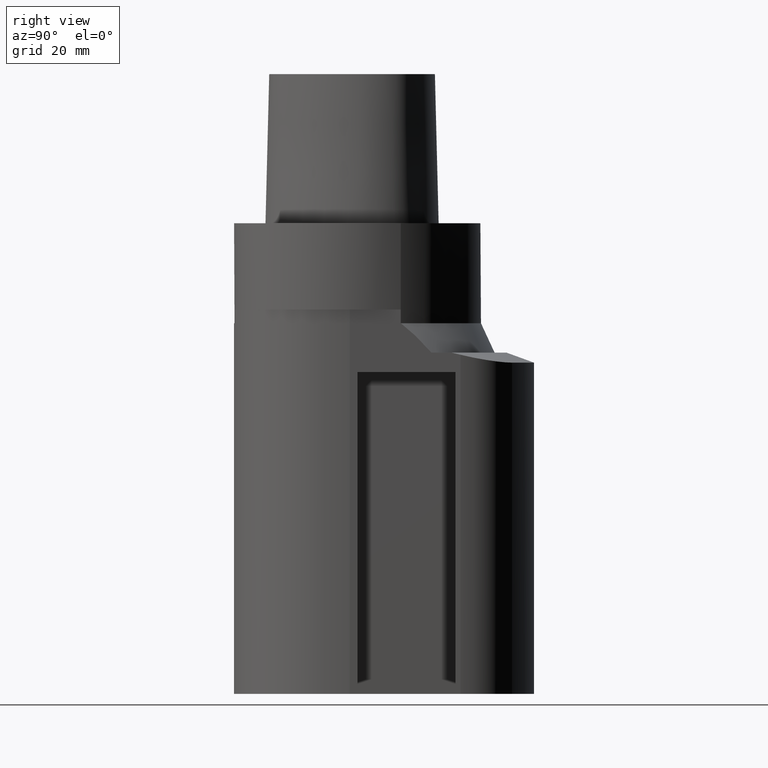
[diagram: clean part render]
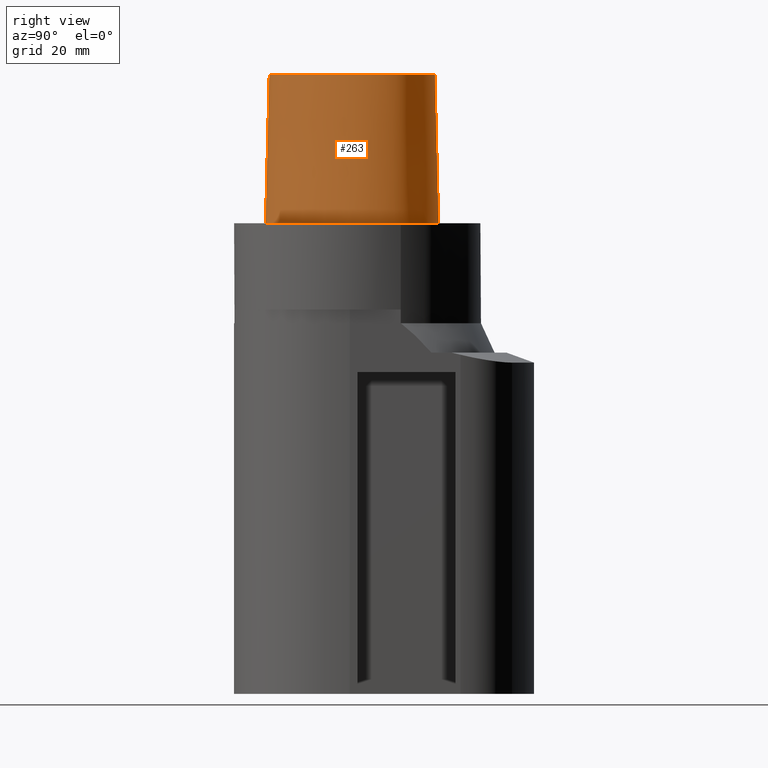
[diagram: same view with one face highlighted and labeled with its STEP entity id]
A machine part, right view. The second image highlights one B-rep face of the part: STEP entity #263.
In plain terms, the highlighted face is a freeform B-spline surface patch.
Its self-contained STEP definition (entity closure, byte-faithful):
#124=EDGE_CURVE('240[2]',#344,#320,#345,.T.);
#163=EDGE_CURVE('240[2]',#375,#374,#406,.T.);
#187=EDGE_CURVE('240[2]',#374,#320,#442,.T.);
#230=EDGE_CURVE('240[2]',#375,#344,#495,.T.);
#263=ADVANCED_FACE('240[2]',(#534),#535,.T.);
#320=VERTEX_POINT('',#588);
#344=VERTEX_POINT('',#620);
#345=B_SPLINE_CURVE_WITH_KNOTS('',3,(#621,#622,#623,#624,#625,#626,#627,#628,#629,#630,#631,#632,#633,#634,#635,#636,#637,#638,#639,#640,#641,#642,#643,#644,#645,#646,#647,#648,#649,#650,#651,#652),.UNSPECIFIED.,.F.,.F.,(4,2,2,2,2,2,2,2,2,2,2,2,2,2,2,4),(6.6151339308743,6.90353802293409,7.19194211499389,7.48034620705369,7.76875029911348,8.3273781966476,8.88600609418171,10.0632582234986,10.5220146921826,10.9807711608666,11.2101493952086,11.4395276295506,11.8982840982346,12.4281394376607,12.8292036497046,13.2302678617486),.UNSPECIFIED.);
#374=VERTEX_POINT('',#703);
#375=VERTEX_POINT('',#704);
#406=B_SPLINE_CURVE_WITH_KNOTS('',3,(#785,#786,#787,#788,#789,#790,#791,#792,#793,#794,#795,#796,#797,#798,#799,#800),.UNSPECIFIED.,.F.,.F.,(4,1,1,1,1,1,1,1,1,1,1,1,1,4),(6.61513393087503,6.99917207152274,7.48193246986995,7.96289324787093,8.45540287038584,9.10291653679981,9.67129810936083,10.1618749681153,10.6358867802489,11.1080734988593,11.6043706019633,12.09451993853,12.6985979284494,13.2302678617486),.UNSPECIFIED.);
#442=LINE('',#859,#860);
#495=LINE('',#972,#973);
#534=FACE_OUTER_BOUND('',#1116,.T.);
#535=B_SPLINE_SURFACE_WITH_KNOTS('',3,3,((#1117,#1118,#1119,#1120),(#1121,#1122,#1123,#1124),(#1125,#1126,#1127,#1128),(#1129,#1130,#1131,#1132),(#1133,#1134,#1135,#1136),(#1137,#1138,#1139,#1140),(#1141,#1142,#1143,#1144),(#1145,#1146,#1147,#1148),(#1149,#1150,#1151,#1152),(#1153,#1154,#1155,#1156),(#1157,#1158,#1159,#1160),(#1161,#1162,#1163,#1164),(#1165,#1166,#1167,#1168),(#1169,#1170,#1171,#1172),(#1173,#1174,#1175,#1176),(#1177,#1178,#1179,#1180),(#1181,#1182,#1183,#1184)),.UNSPECIFIED.,.F.,.F.,.F.,(4,1,1,1,1,1,1,1,1,1,1,1,1,1,4),(4,4),(-13.2302678617486,-12.816821991069,-12.4033761203893,-11.9899302497097,-11.57648437903,-11.1630385083504,-10.9563155730106,-10.7495926376707,-10.3361467669911,-9.92270089631145,-9.09580915495216,-8.26891741359287,-7.44202567223358,-7.02857980155394,-6.6151339308743),(-3.8,0.0),.UNSPECIFIED.);
#588=CARTESIAN_POINT('',(0.044682985379347,20.6765087343109,0.0));
#620=CARTESIAN_POINT('',(0.04359356758149,-23.4691235068931,0.0));
#621=CARTESIAN_POINT('',(0.04359356758149,-23.4691235068931,0.0));
#622=CARTESIAN_POINT('',(1.1004598519742,-23.4637201011149,7.105427E-015));
#623=CARTESIAN_POINT('',(2.14400887535539,-23.2973076591387,0.0));
#624=CARTESIAN_POINT('',(4.1424681795584,-22.7592077909815,0.0));
#625=CARTESIAN_POINT('',(5.09815205870591,-22.390397570418,-7.105427E-015));
#626=CARTESIAN_POINT('',(6.9351099930747,-21.5078613163183,-7.105427E-015));
#627=CARTESIAN_POINT('',(7.80351845767777,-20.9996631554928,-7.105427E-015));
#628=CARTESIAN_POINT('',(9.46943987011575,-19.8886274331692,-7.105427E-015));
#629=CARTESIAN_POINT('',(10.2666299015956,-19.2853057570752,-7.105427E-015));
#630=CARTESIAN_POINT('',(12.5026318141948,-17.3963733278614,2.131628E-014));
#631=CARTESIAN_POINT('',(13.8422909676271,-16.0046937991299,0.0));
#632=CARTESIAN_POINT('',(16.2509822407142,-13.0101546997628,1.421085E-014));
#633=CARTESIAN_POINT('',(17.3206577927156,-11.4078127381174,-7.105427E-015));
#634=CARTESIAN_POINT('',(20.1948648257688,-6.17855164445771,-7.105427E-015));
#635=CARTESIAN_POINT('',(21.5264998810762,-2.27044916431131,-7.105427E-015));
#636=CARTESIAN_POINT('',(22.1083077940609,3.36511341978747,-7.105427E-015));
#637=CARTESIAN_POINT('',(22.1437891560423,4.95691742010578,-7.105427E-015));
#638=CARTESIAN_POINT('',(21.7438554055,8.21486313336421,-7.105427E-015));
#639=CARTESIAN_POINT('',(21.2813238062713,9.87761881981491,0.0));
#640=CARTESIAN_POINT('',(20.1794569882097,12.0317423962685,0.0));
#641=CARTESIAN_POINT('',(19.7024138468366,12.7593191234763,-7.105427E-015));
#642=CARTESIAN_POINT('',(18.6262164065722,14.0443851003557,-7.105427E-015));
#643=CARTESIAN_POINT('',(18.0388107856225,14.6116679410871,0.0));
#644=CARTESIAN_POINT('',(16.1284788612342,16.197117807416,7.105427E-015));
#645=CARTESIAN_POINT('',(14.7618818860482,17.03003182658,0.0));
#646=CARTESIAN_POINT('',(11.6856166176821,18.5458506425855,0.0));
#647=CARTESIAN_POINT('',(9.96274972961394,19.1800623227596,0.0));
#648=CARTESIAN_POINT('',(6.84723700488339,20.0025241142556,0.0));
#649=CARTESIAN_POINT('',(5.4719505740624,20.2496312304465,0.0));
#650=CARTESIAN_POINT('',(2.7387517037224,20.5467807312008,0.0));
#651=CARTESIAN_POINT('',(1.38248716057628,20.6117898211938,0.0));
#652=CARTESIAN_POINT('',(0.044682985379347,20.6765087343109,0.0));
#703=CARTESIAN_POINT('',(-0.001218547003662,19.7276821925089,38.0));
#704=CARTESIAN_POINT('',(0.038736923393866,-22.5191997536361,38.0));
#785=CARTESIAN_POINT('',(0.038736923394311,-22.519199753636,38.0));
#786=CARTESIAN_POINT('',(1.31742058183662,-22.512662269405,38.0));
#787=CARTESIAN_POINT('',(4.2093773447498,-21.9116226439989,38.0));
#788=CARTESIAN_POINT('',(8.20895504542113,-19.7798683845067,38.0));
#789=CARTESIAN_POINT('',(11.9784633234593,-16.681663904162,38.0));
#790=CARTESIAN_POINT('',(15.5308821579362,-12.5807487594113,38.0));
#791=CARTESIAN_POINT('',(18.4566248438667,-7.64932246015528,38.0));
#792=CARTESIAN_POINT('',(20.4036090752029,-2.27012499825289,38.0));
#793=CARTESIAN_POINT('',(21.2357187429189,2.79891401173156,38.0));
#794=CARTESIAN_POINT('',(21.0811206267748,7.62543090736657,38.0));
#795=CARTESIAN_POINT('',(19.3383577336563,12.2772250726194,38.0));
#796=CARTESIAN_POINT('',(15.5796322014404,15.5799672120682,38.0));
#797=CARTESIAN_POINT('',(10.8392956074438,17.9834601687347,38.0));
#798=CARTESIAN_POINT('',(5.56068045850571,19.4586143858472,38.0));
#799=CARTESIAN_POINT('',(1.77223893711014,19.6418877095654,38.0));
#800=CARTESIAN_POINT('',(-0.001218367817519,19.7276822012873,38.0));
#859=CARTESIAN_POINT('',(-0.001218547003662,19.7276821925089,38.0));
#860=VECTOR('',#1371,38.0118715503078);
#972=CARTESIAN_POINT('',(0.038736923393866,-22.5191997536361,38.0));
#973=VECTOR('',#1449,38.0118715498723);
#1116=EDGE_LOOP('',(#1487,#1488,#1489,#1490));
#1117=CARTESIAN_POINT('',(-0.001218367817519,19.7276822012873,38.0));
#1118=CARTESIAN_POINT('',(0.014082083248157,20.0439577123075,25.3333333333066));
#1119=CARTESIAN_POINT('',(0.029382534313671,20.3602332232908,12.6666666666934));
#1120=CARTESIAN_POINT('',(0.044682985379347,20.6765087343109,0.0));
#1121=CARTESIAN_POINT('',(1.37788651195108,19.6609652834875,38.0));
#1122=CARTESIAN_POINT('',(1.3931885827258,19.9772407169847,25.3333333333066));
#1123=CARTESIAN_POINT('',(1.40849065356095,20.2935162254648,12.6666666666934));
#1124=CARTESIAN_POINT('',(1.42379272427753,20.6097915814392,0.0));
#1125=CARTESIAN_POINT('',(4.135446440878,19.5347778787784,38.0));
#1126=CARTESIAN_POINT('',(4.16466278851883,19.8511031866125,25.3333333333066));
#1127=CARTESIAN_POINT('',(4.1938791526746,20.1674284644204,12.6666666666934));
#1128=CARTESIAN_POINT('',(4.2230955003445,20.4837538303966,0.0));
#1129=CARTESIAN_POINT('',(8.213607363795,18.7706026638736,38.0));
#1130=CARTESIAN_POINT('',(8.29980745008421,19.0767495109635,25.3333333333066));
#1131=CARTESIAN_POINT('',(8.38600751285747,19.3828964329996,12.6666666666934));
#1132=CARTESIAN_POINT('',(8.47220762821777,19.6890432607088,0.0));
#1133=CARTESIAN_POINT('',(12.1316338645671,17.3698624840857,38.0));
#1134=CARTESIAN_POINT('',(12.2591308270381,17.6610739397708,25.3333333333066));
#1135=CARTESIAN_POINT('',(12.3866278083543,17.9522853923553,12.6666666666934));
#1136=CARTESIAN_POINT('',(12.5141247708253,18.2434968480404,0.0));
#1137=CARTESIAN_POINT('',(15.7706546153679,15.3789501349612,38.0));
#1138=CARTESIAN_POINT('',(15.9483905900895,15.6437731794811,25.3333333333066));
#1139=CARTESIAN_POINT('',(16.1261265513272,15.9085961736944,12.6666666666934));
#1140=CARTESIAN_POINT('',(16.3038624872874,16.1734192182143,0.0));
#1141=CARTESIAN_POINT('',(18.4265894256284,13.0570022172893,38.0));
#1142=CARTESIAN_POINT('',(18.6659567517146,13.2725589420689,25.3333333333066));
#1143=CARTESIAN_POINT('',(18.9053240921419,13.4881156488541,12.6666666666934));
#1144=CARTESIAN_POINT('',(19.1446913988473,13.7036723639434,0.0));
#1145=CARTESIAN_POINT('',(19.8679958653038,10.6923771981998,38.0));
#1146=CARTESIAN_POINT('',(20.1559937048299,10.8287388264873,25.3333333333066));
#1147=CARTESIAN_POINT('',(20.4439915656177,10.965100461641,12.6666666666934));
#1148=CARTESIAN_POINT('',(20.7319894342149,11.1014620996188,0.0));
#1149=CARTESIAN_POINT('',(20.8470867582337,8.07149548576131,38.0));
#1150=CARTESIAN_POINT('',(21.1591164072431,8.14132775555392,25.3333333333066));
#1151=CARTESIAN_POINT('',(21.4711459821861,8.21116003697855,12.6666666666934));
#1152=CARTESIAN_POINT('',(21.7831756505763,8.28099229708081,0.0));
#1153=CARTESIAN_POINT('',(21.2693244256982,4.61157245650171,38.0));
#1154=CARTESIAN_POINT('',(21.5881576801997,4.6105997689982,25.3333333333066));
#1155=CARTESIAN_POINT('',(21.9069908544037,4.60962709346857,12.6666666666934));
#1156=CARTESIAN_POINT('',(22.2258240701438,4.60865440596506,0.0));
#1157=CARTESIAN_POINT('',(20.8071610855575,-0.912828649855193,38.0));
#1158=CARTESIAN_POINT('',(21.119311671178,-0.979640884839481,25.3333333333066));
#1159=CARTESIAN_POINT('',(21.4314624224461,-1.04645306732201,12.6666666666934));
#1160=CARTESIAN_POINT('',(21.7436130080666,-1.11326526354485,0.0));
#1161=CARTESIAN_POINT('',(18.6841935581315,-7.54428794252837,38.0));
#1162=CARTESIAN_POINT('',(18.9734452551861,-7.6809665891091,25.3333333333066));
#1163=CARTESIAN_POINT('',(19.2626970689956,-7.81764505382656,12.6666666666934));
#1164=CARTESIAN_POINT('',(19.5519487660502,-7.95432366164584,0.0));
#1165=CARTESIAN_POINT('',(14.2175552814,-14.5971504342323,38.0));
#1166=CARTESIAN_POINT('',(14.4641757465198,-14.8010930946929,25.3333333333066));
#1167=CARTESIAN_POINT('',(14.710796247264,-15.0050359737917,12.6666666666934));
#1168=CARTESIAN_POINT('',(14.9574167123838,-15.2089785567293,0.0));
#1169=CARTESIAN_POINT('',(9.0844808732933,-19.3179298129689,38.0));
#1170=CARTESIAN_POINT('',(9.27912152349017,-19.572866915557,25.3333333333066));
#1171=CARTESIAN_POINT('',(9.47376218971294,-19.827804295621,12.6666666666934));
#1172=CARTESIAN_POINT('',(9.66840283021945,-20.0827414369705,0.0));
#1173=CARTESIAN_POINT('',(4.17112919194182,-21.8987568152736,38.0));
#1174=CARTESIAN_POINT('',(4.28618163483998,-22.1973837173649,25.3333333333066));
#1175=CARTESIAN_POINT('',(4.40123406239433,-22.4960105163661,12.6666666666934));
#1176=CARTESIAN_POINT('',(4.51628650521788,-22.7946374572188,0.0));
#1177=CARTESIAN_POINT('',(1.41533654381097,-22.5120888467812,38.0));
#1178=CARTESIAN_POINT('',(1.46311520162011,-22.8284916374445,25.3333333333066));
#1179=CARTESIAN_POINT('',(1.51089385942236,-23.144894486341,12.6666666666934));
#1180=CARTESIAN_POINT('',(1.55867251738073,-23.4612972770043,0.0));
#1181=CARTESIAN_POINT('',(0.038736923393866,-22.5191997536361,38.0));
#1182=CARTESIAN_POINT('',(0.04035580478973,-22.8358410047159,25.3333333333066));
#1183=CARTESIAN_POINT('',(0.041974686185626,-23.1524822558133,12.6666666666934));
#1184=CARTESIAN_POINT('',(0.04359356758149,-23.4691235068931,0.0));
#1371=DIRECTION('',(0.001207557810519,0.024961321374199,-0.999687688350411));
#1449=DIRECTION('',(0.000127766510556,-0.024990186342461,-0.999687688361864));
#1487=ORIENTED_EDGE('',*,*,#124,.T.);
#1488=ORIENTED_EDGE('',*,*,#187,.F.);
#1489=ORIENTED_EDGE('',*,*,#163,.F.);
#1490=ORIENTED_EDGE('',*,*,#230,.T.);